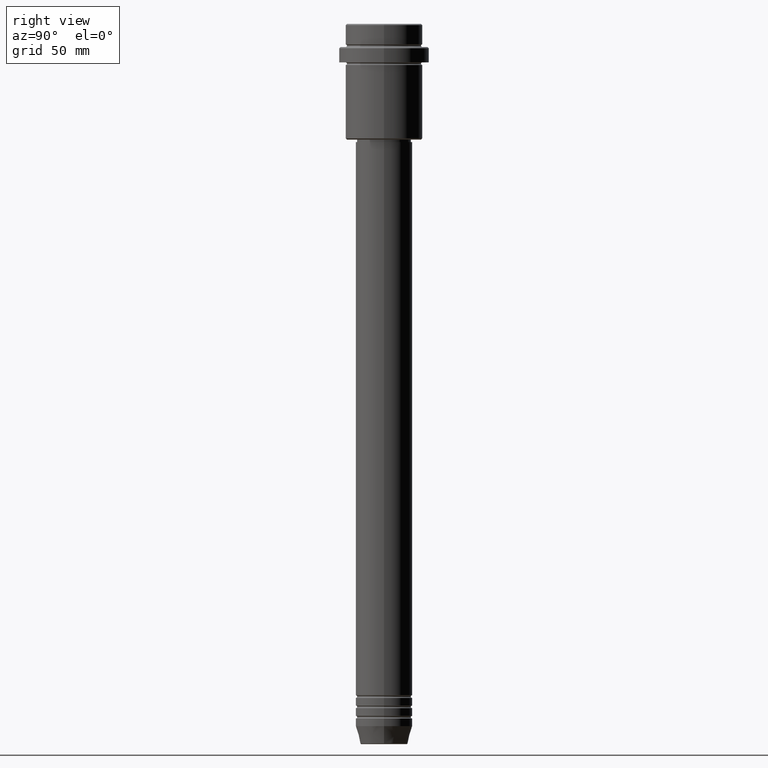
[diagram: clean part render]
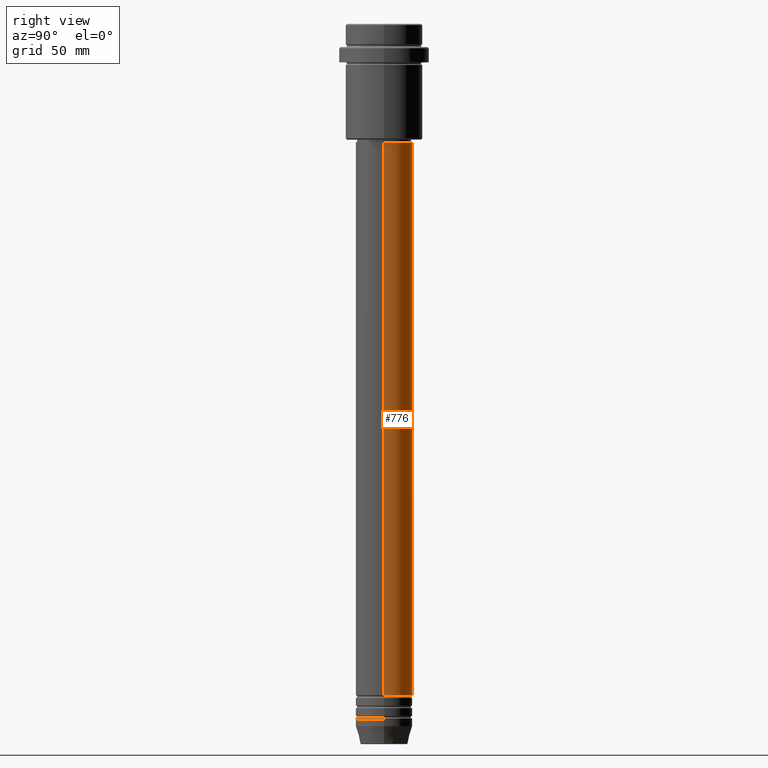
[diagram: same view with one face highlighted and labeled with its STEP entity id]
A machine part, right view. The second image highlights one B-rep face of the part: STEP entity #776.
In plain terms, the highlighted cylindrical surface (edge-blend (fillet) strip) has radius 11 mm, axis along (-0, -0, 1).
Its self-contained STEP definition (entity closure, byte-faithful):
#30 = EDGE_CURVE ( 'NONE', #324, #938, #1028, .T. ) ;
#98 = ORIENTED_EDGE ( 'NONE', *, *, #496, .T. ) ;
#146 = EDGE_CURVE ( 'NONE', #324, #1080, #1383, .T. ) ;
#160 = CARTESIAN_POINT ( 'NONE',  ( 11.00000000000000000, 0.000000000000000000, 0.000000000000000000 ) ) ;
#206 = CARTESIAN_POINT ( 'NONE',  ( 0.000000000000000000, 0.000000000000000000, -46.00000000000002132 ) ) ;
#209 = CARTESIAN_POINT ( 'NONE',  ( -11.00000000000000000, 1.347111479062088405E-15, -260.9999999999998863 ) ) ;
#222 = FACE_OUTER_BOUND ( 'NONE', #1011, .T. ) ;
#255 = AXIS2_PLACEMENT_3D ( 'NONE', #1079, #629, #401 ) ;
#298 = CARTESIAN_POINT ( 'NONE',  ( -11.00000000000000000, 1.347111479062088405E-15, 0.000000000000000000 ) ) ;
#303 = CIRCLE ( 'NONE', #1177, 10.99999999999999822 ) ;
#324 = VERTEX_POINT ( 'NONE', #1119 ) ;
#361 = ORIENTED_EDGE ( 'NONE', *, *, #146, .T. ) ;
#401 = DIRECTION ( 'NONE',  ( 1.000000000000000000, 0.000000000000000000, 0.000000000000000000 ) ) ;
#438 = VECTOR ( 'NONE', #1259, 1000.000000000000000 ) ;
#496 = EDGE_CURVE ( 'NONE', #1080, #890, #519, .T. ) ;
#519 = LINE ( 'NONE', #298, #1018 ) ;
#629 = DIRECTION ( 'NONE',  ( -0.000000000000000000, -0.000000000000000000, 1.000000000000000000 ) ) ;
#634 = CARTESIAN_POINT ( 'NONE',  ( 0.000000000000000000, 0.000000000000000000, 0.000000000000000000 ) ) ;
#677 = EDGE_CURVE ( 'NONE', #938, #890, #303, .T. ) ;
#692 = ORIENTED_EDGE ( 'NONE', *, *, #677, .F. ) ;
#745 = DIRECTION ( 'NONE',  ( 1.000000000000000000, 0.000000000000000000, 0.000000000000000000 ) ) ;
#776 = ADVANCED_FACE ( 'NONE', ( #222 ), #846, .T. ) ;
#777 = CARTESIAN_POINT ( 'NONE',  ( -10.99999999999999822, 1.347111479062088207E-15, -46.00000000000002132 ) ) ;
#833 = CARTESIAN_POINT ( 'NONE',  ( 10.99999999999999822, 0.000000000000000000, -46.00000000000002132 ) ) ;
#846 = CYLINDRICAL_SURFACE ( 'NONE', #1066, 11.00000000000000000 ) ;
#890 = VERTEX_POINT ( 'NONE', #777 ) ;
#938 = VERTEX_POINT ( 'NONE', #833 ) ;
#1011 = EDGE_LOOP ( 'NONE', ( #361, #98, #692, #1390 ) ) ;
#1018 = VECTOR ( 'NONE', #1396, 1000.000000000000000 ) ;
#1028 = LINE ( 'NONE', #160, #438 ) ;
#1058 = DIRECTION ( 'NONE',  ( -0.000000000000000000, -0.000000000000000000, 1.000000000000000000 ) ) ;
#1066 = AXIS2_PLACEMENT_3D ( 'NONE', #634, #1058, #1068 ) ;
#1068 = DIRECTION ( 'NONE',  ( 1.000000000000000000, 0.000000000000000000, 0.000000000000000000 ) ) ;
#1079 = CARTESIAN_POINT ( 'NONE',  ( 0.000000000000000000, 0.000000000000000000, -260.9999999999998863 ) ) ;
#1080 = VERTEX_POINT ( 'NONE', #209 ) ;
#1089 = DIRECTION ( 'NONE',  ( -0.000000000000000000, -0.000000000000000000, 1.000000000000000000 ) ) ;
#1119 = CARTESIAN_POINT ( 'NONE',  ( 11.00000000000000000, 0.000000000000000000, -260.9999999999998863 ) ) ;
#1177 = AXIS2_PLACEMENT_3D ( 'NONE', #206, #1089, #745 ) ;
#1259 = DIRECTION ( 'NONE',  ( -0.000000000000000000, -0.000000000000000000, 1.000000000000000000 ) ) ;
#1383 = CIRCLE ( 'NONE', #255, 11.00000000000000000 ) ;
#1390 = ORIENTED_EDGE ( 'NONE', *, *, #30, .F. ) ;
#1396 = DIRECTION ( 'NONE',  ( -0.000000000000000000, -0.000000000000000000, 1.000000000000000000 ) ) ;